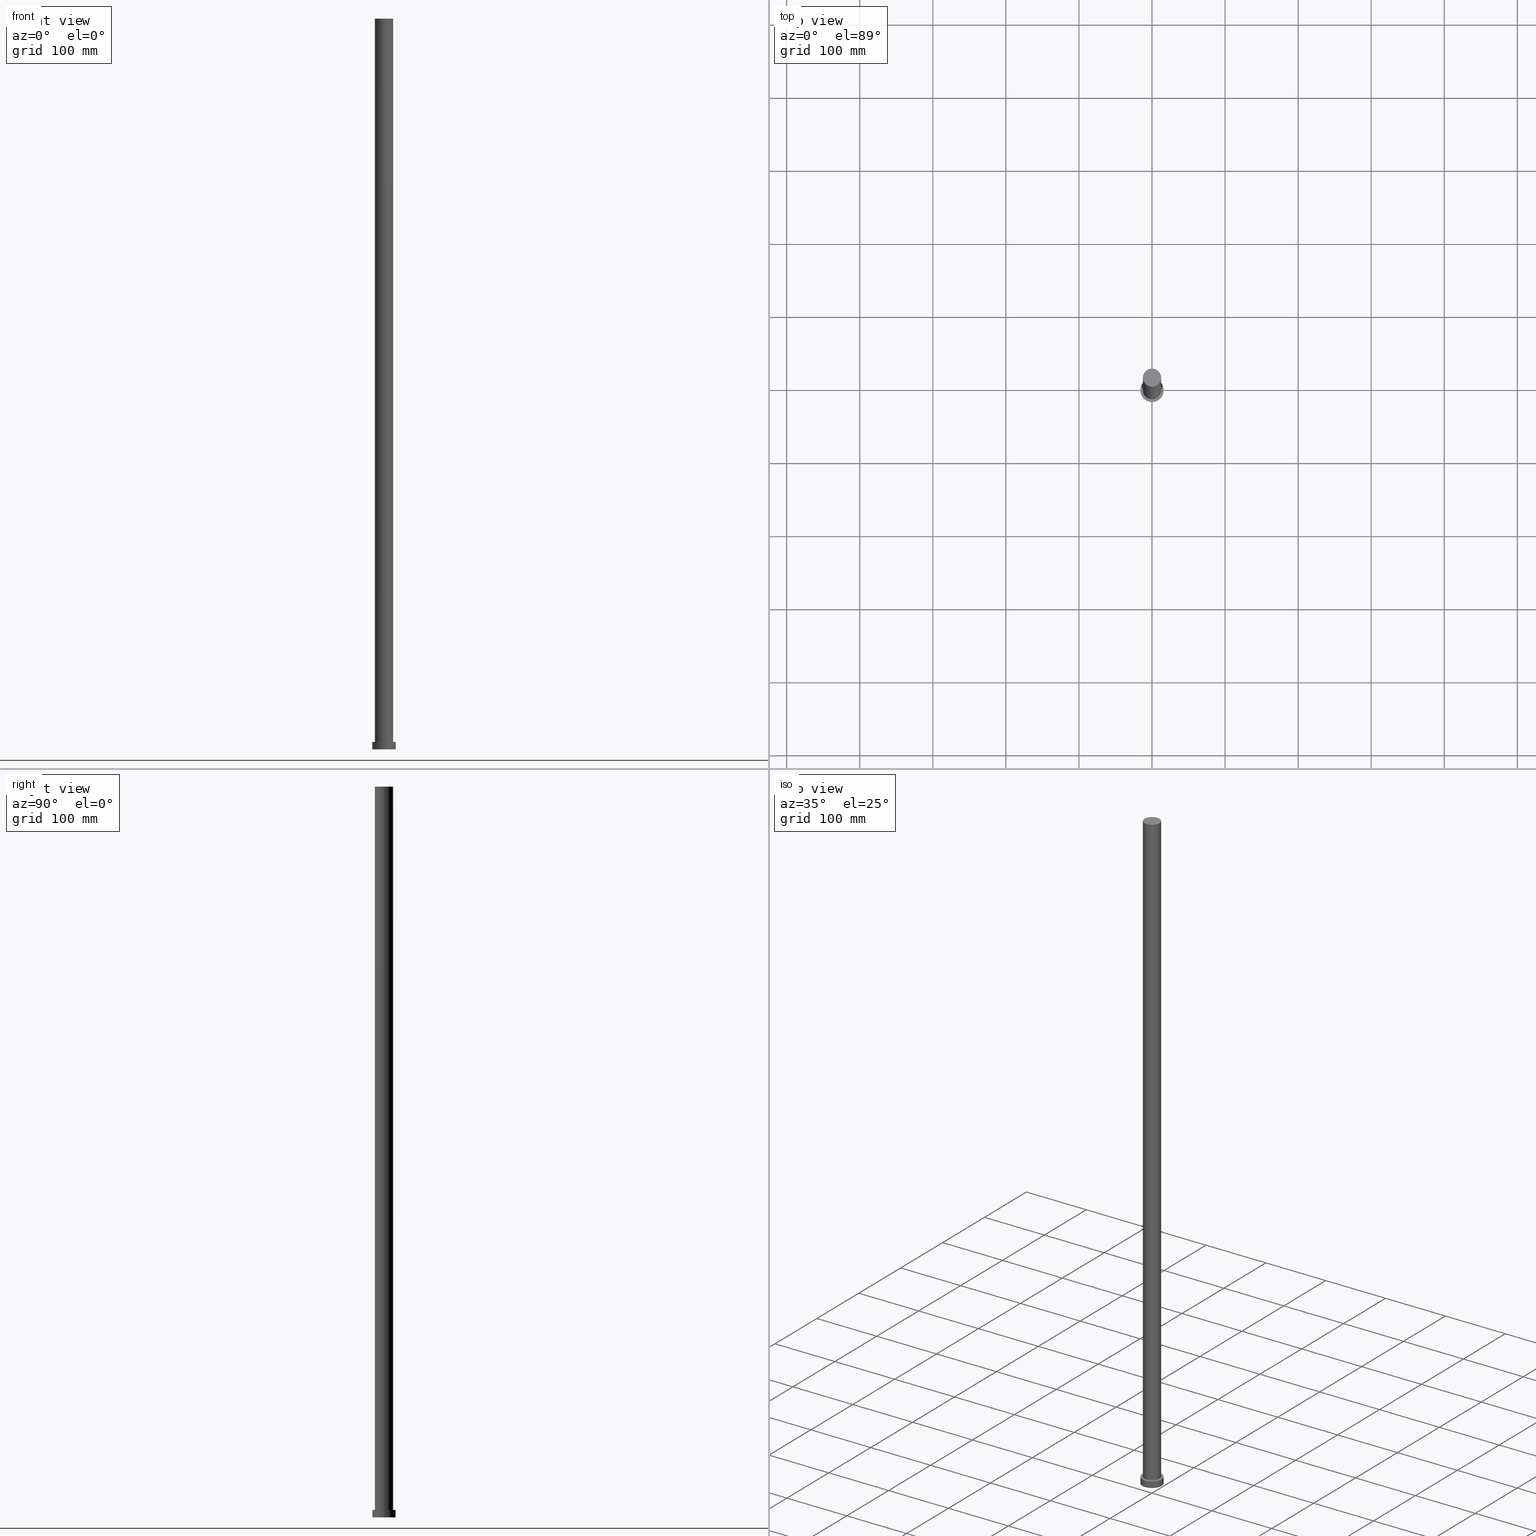
[diagram: canonical four-view strip — front | top / right | iso, engineering-drawing reading convention]
A machine part, canonical four-view strip (front | top / right | iso — engineering-drawing reading convention). The complete STEP part file that produces these views, byte-faithful:
ISO-10303-21;
HEADER;
FILE_DESCRIPTION (( 'STEP AP203' ),
    '1' );
FILE_NAME ('be8a.STEP',
    '2023-02-13T07:30:59',
    ( '' ),
    ( '' ),
    'SwSTEP 2.0',
    'SolidWorks 2019',
    '' );
FILE_SCHEMA (( 'CONFIG_CONTROL_DESIGN' ));
ENDSEC;

DATA;
#1 = EDGE_CURVE ( 'NONE', #235, #229, #188, .T. ) ;
#2 = ORIENTED_EDGE ( 'NONE', *, *, #187, .F. ) ;
#3 = CARTESIAN_POINT ( 'NONE',  ( -16.00000000000000000, 0.000000000000000000, 10.00000000000000000 ) ) ;
#4 = CIRCLE ( 'NONE', #148, 12.50000000000000000 ) ;
#5 = ORIENTED_EDGE ( 'NONE', *, *, #107, .T. ) ;
#6 = ADVANCED_FACE ( 'NONE', ( #119, #220 ), #90, .T. ) ;
#7 = LOCAL_TIME ( 8, 30, 59.00000000000000000, #27 ) ;
#8 = CARTESIAN_POINT ( 'NONE',  ( 16.00000000000000000, 1.959434878635765131E-15, 10.00000000000000000 ) ) ;
#9 = PERSON_AND_ORGANIZATION_ROLE ( 'creator' ) ;
#10 =( GEOMETRIC_REPRESENTATION_CONTEXT ( 3 ) GLOBAL_UNCERTAINTY_ASSIGNED_CONTEXT ( ( #184 ) ) GLOBAL_UNIT_ASSIGNED_CONTEXT ( ( #99, #62, #175 ) ) REPRESENTATION_CONTEXT ( 'NONE', 'WORKASPACE' ) );
#11 = APPLICATION_CONTEXT ( 'configuration controlled 3d designs of mechanical parts and assemblies' ) ;
#12 = DIRECTION ( 'NONE',  ( 0.000000000000000000, 0.000000000000000000, 1.000000000000000000 ) ) ;
#13 = FACE_OUTER_BOUND ( 'NONE', #206, .T. ) ;
#14 = APPROVAL_STATUS ( 'not_yet_approved' ) ;
#15 = AXIS2_PLACEMENT_3D ( 'NONE', #67, #106, #231 ) ;
#16 = EDGE_CURVE ( 'NONE', #130, #183, #166, .T. ) ;
#17 = CARTESIAN_POINT ( 'NONE',  ( 16.00000000000000000, 1.959434878635765131E-15, 10.00000000000000000 ) ) ;
#18 = DIRECTION ( 'NONE',  ( -0.000000000000000000, -0.000000000000000000, -1.000000000000000000 ) ) ;
#19 = ORIENTED_EDGE ( 'NONE', *, *, #102, .F. ) ;
#20 = CIRCLE ( 'NONE', #151, 12.50000000000000000 ) ;
#21 = APPROVAL_PERSON_ORGANIZATION ( #145, #110, #46 ) ;
#22 = MANIFOLD_SOLID_BREP ( 'P�idat vysunut�m3', #89 ) ;
#23 = ORIENTED_EDGE ( 'NONE', *, *, #150, .F. ) ;
#24 = DIRECTION ( 'NONE',  ( 1.000000000000000000, 0.000000000000000000, 0.000000000000000000 ) ) ;
#25 = DIRECTION ( 'NONE',  ( 0.000000000000000000, 0.000000000000000000, 1.000000000000000000 ) ) ;
#26 = DIRECTION ( 'NONE',  ( 0.000000000000000000, 0.000000000000000000, 1.000000000000000000 ) ) ;
#27 = COORDINATED_UNIVERSAL_TIME_OFFSET ( 1, 0, .AHEAD. ) ;
#28 = CARTESIAN_POINT ( 'NONE',  ( -16.00000000000000000, 0.000000000000000000, 10.00000000000000000 ) ) ;
#29 = APPROVAL_ROLE ( '' ) ;
#30 = PLANE ( 'NONE',  #111 ) ;
#31 = DIRECTION ( 'NONE',  ( -1.000000000000000000, 0.000000000000000000, 0.000000000000000000 ) ) ;
#32 = EDGE_LOOP ( 'NONE', ( #71, #214 ) ) ;
#33 = APPROVAL_PERSON_ORGANIZATION ( #174, #160, #139 ) ;
#34 = DIRECTION ( 'NONE',  ( -1.000000000000000000, 0.000000000000000000, 0.000000000000000000 ) ) ;
#35 = CARTESIAN_POINT ( 'NONE',  ( 0.000000000000000000, 0.000000000000000000, 1000.000000000000000 ) ) ;
#36 = AXIS2_PLACEMENT_3D ( 'NONE', #247, #146, #227 ) ;
#37 = DATE_TIME_ROLE ( 'creation_date' ) ;
#38 = LOCAL_TIME ( 8, 30, 59.00000000000000000, #97 ) ;
#39 = FACE_OUTER_BOUND ( 'NONE', #52, .T. ) ;
#40 = PRODUCT_DEFINITION ( 'NEZN�M�', '', #91, #53 ) ;
#41 = SECURITY_CLASSIFICATION_LEVEL ( 'unclassified' ) ;
#42 = ADVANCED_FACE ( 'NONE', ( #39 ), #138, .F. ) ;
#43 = CALENDAR_DATE ( 2023, 13, 2 ) ;
#44 = DATE_TIME_ROLE ( 'classification_date' ) ;
#45 = CIRCLE ( 'NONE', #15, 16.00000000000000000 ) ;
#46 = APPROVAL_ROLE ( '' ) ;
#47 = CARTESIAN_POINT ( 'NONE',  ( 12.50000000000000000, 1.530808498934191521E-15, 1000.000000000000000 ) ) ;
#48 = DIRECTION ( 'NONE',  ( 0.000000000000000000, 0.000000000000000000, 1.000000000000000000 ) ) ;
#49 = PRODUCT_DEFINITION_SHAPE ( 'NONE', 'NONE',  #40 ) ;
#50 = ORIENTED_EDGE ( 'NONE', *, *, #158, .F. ) ;
#51 = DIRECTION ( 'NONE',  ( 0.000000000000000000, 0.000000000000000000, 1.000000000000000000 ) ) ;
#52 = EDGE_LOOP ( 'NONE', ( #161, #162 ) ) ;
#53 = DESIGN_CONTEXT ( 'detailed design', #86, 'design' ) ;
#54 = DIRECTION ( 'NONE',  ( 1.000000000000000000, 0.000000000000000000, -0.000000000000000000 ) ) ;
#55 = CC_DESIGN_DATE_AND_TIME_ASSIGNMENT ( #94, #37, ( #40 ) ) ;
#56 = VECTOR ( 'NONE', #169, 1000.000000000000000 ) ;
#57 = PERSON_AND_ORGANIZATION_ROLE ( 'classification_officer' ) ;
#58 = CALENDAR_DATE ( 2023, 13, 2 ) ;
#59 = APPROVAL_DATE_TIME ( #217, #221 ) ;
#60 = ADVANCED_FACE ( 'NONE', ( #116 ), #92, .T. ) ;
#61 = MECHANICAL_CONTEXT ( 'NONE', #11, 'mechanical' ) ;
#62 =( NAMED_UNIT ( * ) PLANE_ANGLE_UNIT ( ) SI_UNIT ( $, .RADIAN. ) );
#63 = ADVANCED_FACE ( 'NONE', ( #219 ), #195, .T. ) ;
#64 = ORIENTED_EDGE ( 'NONE', *, *, #187, .T. ) ;
#65 = CARTESIAN_POINT ( 'NONE',  ( 0.000000000000000000, 0.000000000000000000, 10.00000000000000000 ) ) ;
#66 = ORIENTED_EDGE ( 'NONE', *, *, #230, .T. ) ;
#67 = CARTESIAN_POINT ( 'NONE',  ( 0.000000000000000000, 0.000000000000000000, 10.00000000000000000 ) ) ;
#68 = EDGE_CURVE ( 'NONE', #183, #238, #115, .T. ) ;
#69 = CYLINDRICAL_SURFACE ( 'NONE', #239, 16.00000000000000000 ) ;
#70 = ORIENTED_EDGE ( 'NONE', *, *, #136, .T. ) ;
#71 = ORIENTED_EDGE ( 'NONE', *, *, #140, .F. ) ;
#72 = VERTEX_POINT ( 'NONE', #8 ) ;
#73 = CARTESIAN_POINT ( 'NONE',  ( -12.50000000000000000, 0.000000000000000000, 1000.000000000000000 ) ) ;
#74 = DATE_AND_TIME ( #244, #153 ) ;
#75 = DIRECTION ( 'NONE',  ( 1.000000000000000000, 0.000000000000000000, 0.000000000000000000 ) ) ;
#76 = CC_DESIGN_DATE_AND_TIME_ASSIGNMENT ( #96, #44, ( #191 ) ) ;
#77 = CARTESIAN_POINT ( 'NONE',  ( 0.000000000000000000, 0.000000000000000000, 0.000000000000000000 ) ) ;
#78 = COORDINATED_UNIVERSAL_TIME_OFFSET ( 1, 0, .AHEAD. ) ;
#79 = CARTESIAN_POINT ( 'NONE',  ( -16.00000000000000000, 0.000000000000000000, 0.000000000000000000 ) ) ;
#80 = CARTESIAN_POINT ( 'NONE',  ( -12.50000000000000000, 0.000000000000000000, 10.00000000000000000 ) ) ;
#81 = CARTESIAN_POINT ( 'NONE',  ( 0.000000000000000000, 0.000000000000000000, 0.000000000000000000 ) ) ;
#82 = DIRECTION ( 'NONE',  ( 1.000000000000000000, 0.000000000000000000, 0.000000000000000000 ) ) ;
#83 = DIRECTION ( 'NONE',  ( 0.000000000000000000, 0.000000000000000000, 1.000000000000000000 ) ) ;
#84 = FACE_OUTER_BOUND ( 'NONE', #101, .T. ) ;
#85 = EDGE_LOOP ( 'NONE', ( #19, #215, #190, #234 ) ) ;
#86 = APPLICATION_CONTEXT ( 'configuration controlled 3d designs of mechanical parts and assemblies' ) ;
#87 = VERTEX_POINT ( 'NONE', #181 ) ;
#88 = ORIENTED_EDGE ( 'NONE', *, *, #1, .T. ) ;
#89 = CLOSED_SHELL ( 'NONE', ( #192, #171, #63, #6, #42, #60, #207 ) ) ;
#90 = PLANE ( 'NONE',  #163 ) ;
#91 = PRODUCT_DEFINITION_FORMATION_WITH_SPECIFIED_SOURCE ( 'LIBOVOLN�', '', #205, .NOT_KNOWN. ) ;
#92 = CYLINDRICAL_SURFACE ( 'NONE', #103, 12.50000000000000000 ) ;
#93 = DIRECTION ( 'NONE',  ( -0.000000000000000000, -0.000000000000000000, -1.000000000000000000 ) ) ;
#94 = DATE_AND_TIME ( #196, #167 ) ;
#95 = DIRECTION ( 'NONE',  ( 1.000000000000000000, 0.000000000000000000, -0.000000000000000000 ) ) ;
#96 = DATE_AND_TIME ( #58, #7 ) ;
#97 = COORDINATED_UNIVERSAL_TIME_OFFSET ( 1, 0, .AHEAD. ) ;
#98 = AXIS2_PLACEMENT_3D ( 'NONE', #100, #200, #177 ) ;
#99 =( LENGTH_UNIT ( ) NAMED_UNIT ( * ) SI_UNIT ( .MILLI., .METRE. ) );
#100 = CARTESIAN_POINT ( 'NONE',  ( 0.000000000000000000, 0.000000000000000000, 0.000000000000000000 ) ) ;
#101 = EDGE_LOOP ( 'NONE', ( #23, #134, #5, #208 ) ) ;
#102 = EDGE_CURVE ( 'NONE', #130, #185, #143, .T. ) ;
#103 = AXIS2_PLACEMENT_3D ( 'NONE', #35, #117, #173 ) ;
#104 = LINE ( 'NONE', #17, #232 ) ;
#105 = DIRECTION ( 'NONE',  ( -0.000000000000000000, -0.000000000000000000, -1.000000000000000000 ) ) ;
#106 = DIRECTION ( 'NONE',  ( 0.000000000000000000, 0.000000000000000000, 1.000000000000000000 ) ) ;
#107 = EDGE_CURVE ( 'NONE', #87, #229, #202, .T. ) ;
#108 = PRODUCT_RELATED_PRODUCT_CATEGORY ( 'detail', '', ( #205 ) ) ;
#109 = EDGE_LOOP ( 'NONE', ( #64, #165 ) ) ;
#110 = APPROVAL ( #224, 'NEUR�EN�' ) ;
#111 = AXIS2_PLACEMENT_3D ( 'NONE', #122, #26, #120 ) ;
#112 = EDGE_CURVE ( 'NONE', #183, #130, #114, .T. ) ;
#113 = PERSON ( 'NEUR�EN�', 'NEUR�EN�', 'NEUR�EN�', ('NEUR�EN�'), ('NEUR�EN�'), ('NEUR�EN�') ) ;
#114 = CIRCLE ( 'NONE', #36, 12.50000000000000000 ) ;
#115 = LINE ( 'NONE', #73, #56 ) ;
#116 = FACE_OUTER_BOUND ( 'NONE', #85, .T. ) ;
#117 = DIRECTION ( 'NONE',  ( -0.000000000000000000, -0.000000000000000000, -1.000000000000000000 ) ) ;
#118 = CIRCLE ( 'NONE', #132, 16.00000000000000000 ) ;
#119 = FACE_BOUND ( 'NONE', #32, .T. ) ;
#120 = DIRECTION ( 'NONE',  ( 1.000000000000000000, 0.000000000000000000, -0.000000000000000000 ) ) ;
#121 = COORDINATED_UNIVERSAL_TIME_OFFSET ( 1, 0, .AHEAD. ) ;
#122 = CARTESIAN_POINT ( 'NONE',  ( 0.000000000000000000, 0.000000000000000000, 1000.000000000000000 ) ) ;
#123 = CARTESIAN_POINT ( 'NONE',  ( 12.50000000000000000, 1.530808498934191521E-15, 1000.000000000000000 ) ) ;
#124 = EDGE_LOOP ( 'NONE', ( #212, #164, #66, #251 ) ) ;
#125 = PERSON_AND_ORGANIZATION_ROLE ( 'design_owner' ) ;
#126 = ORGANIZATION ( 'NEUR�EN�', 'NEUR�EN�', '' ) ;
#127 = AXIS2_PLACEMENT_3D ( 'NONE', #210, #245, #31 ) ;
#128 = ORIENTED_EDGE ( 'NONE', *, *, #112, .T. ) ;
#129 = CYLINDRICAL_SURFACE ( 'NONE', #127, 12.50000000000000000 ) ;
#130 = VERTEX_POINT ( 'NONE', #47 ) ;
#131 = FACE_OUTER_BOUND ( 'NONE', #124, .T. ) ;
#132 = AXIS2_PLACEMENT_3D ( 'NONE', #65, #48, #211 ) ;
#133 = CC_DESIGN_PERSON_AND_ORGANIZATION_ASSIGNMENT ( #142, #125, ( #205 ) ) ;
#134 = ORIENTED_EDGE ( 'NONE', *, *, #158, .T. ) ;
#135 = CC_DESIGN_APPROVAL ( #221, ( #91 ) ) ;
#136 = EDGE_CURVE ( 'NONE', #229, #87, #176, .T. ) ;
#137 = DIRECTION ( 'NONE',  ( 0.000000000000000000, 0.000000000000000000, 1.000000000000000000 ) ) ;
#138 = PLANE ( 'NONE',  #249 ) ;
#139 = APPROVAL_ROLE ( '' ) ;
#140 = EDGE_CURVE ( 'NONE', #238, #185, #20, .T. ) ;
#141 = CARTESIAN_POINT ( 'NONE',  ( 0.000000000000000000, 0.000000000000000000, 10.00000000000000000 ) ) ;
#142 = PERSON_AND_ORGANIZATION ( #113, #126 ) ;
#143 = LINE ( 'NONE', #123, #223 ) ;
#144 = APPROVAL_PERSON_ORGANIZATION ( #243, #221, #29 ) ;
#145 = PERSON_AND_ORGANIZATION ( #113, #126 ) ;
#146 = DIRECTION ( 'NONE',  ( 0.000000000000000000, 0.000000000000000000, 1.000000000000000000 ) ) ;
#147 = CARTESIAN_POINT ( 'NONE',  ( 0.000000000000000000, 0.000000000000000000, 10.00000000000000000 ) ) ;
#148 = AXIS2_PLACEMENT_3D ( 'NONE', #228, #159, #226 ) ;
#149 = CC_DESIGN_SECURITY_CLASSIFICATION ( #191, ( #91 ) ) ;
#150 = EDGE_CURVE ( 'NONE', #72, #235, #118, .T. ) ;
#151 = AXIS2_PLACEMENT_3D ( 'NONE', #250, #51, #253 ) ;
#152 = APPROVAL_STATUS ( 'not_yet_approved' ) ;
#153 = LOCAL_TIME ( 8, 30, 59.00000000000000000, #78 ) ;
#154 = DATE_AND_TIME ( #43, #38 ) ;
#155 = APPLICATION_PROTOCOL_DEFINITION ( 'international standard', 'config_control_design', 1994, #11 ) ;
#156 = AXIS2_PLACEMENT_3D ( 'NONE', #197, #12, #24 ) ;
#157 = APPLICATION_PROTOCOL_DEFINITION ( 'international standard', 'config_control_design', 1994, #86 ) ;
#158 = EDGE_CURVE ( 'NONE', #72, #87, #104, .T. ) ;
#159 = DIRECTION ( 'NONE',  ( 0.000000000000000000, 0.000000000000000000, 1.000000000000000000 ) ) ;
#160 = APPROVAL ( #14, 'NEUR�EN�' ) ;
#161 = ORIENTED_EDGE ( 'NONE', *, *, #136, .F. ) ;
#162 = ORIENTED_EDGE ( 'NONE', *, *, #107, .F. ) ;
#163 = AXIS2_PLACEMENT_3D ( 'NONE', #141, #137, #54 ) ;
#164 = ORIENTED_EDGE ( 'NONE', *, *, #102, .T. ) ;
#165 = ORIENTED_EDGE ( 'NONE', *, *, #150, .T. ) ;
#166 = CIRCLE ( 'NONE', #156, 12.50000000000000000 ) ;
#167 = LOCAL_TIME ( 8, 30, 59.00000000000000000, #241 ) ;
#168 = PERSON_AND_ORGANIZATION ( #113, #126 ) ;
#169 = DIRECTION ( 'NONE',  ( -0.000000000000000000, -0.000000000000000000, -1.000000000000000000 ) ) ;
#170 = CALENDAR_DATE ( 2023, 13, 2 ) ;
#171 = ADVANCED_FACE ( 'NONE', ( #84 ), #69, .T. ) ;
#172 = DIRECTION ( 'NONE',  ( -0.000000000000000000, -0.000000000000000000, -1.000000000000000000 ) ) ;
#173 = DIRECTION ( 'NONE',  ( -1.000000000000000000, 0.000000000000000000, 0.000000000000000000 ) ) ;
#174 = PERSON_AND_ORGANIZATION ( #113, #126 ) ;
#175 =( NAMED_UNIT ( * ) SI_UNIT ( $, .STERADIAN. ) SOLID_ANGLE_UNIT ( ) );
#176 = CIRCLE ( 'NONE', #254, 16.00000000000000000 ) ;
#177 = DIRECTION ( 'NONE',  ( 1.000000000000000000, 0.000000000000000000, 0.000000000000000000 ) ) ;
#178 = CC_DESIGN_PERSON_AND_ORGANIZATION_ASSIGNMENT ( #218, #240, ( #91 ) ) ;
#179 = DIRECTION ( 'NONE',  ( -0.000000000000000000, -0.000000000000000000, -1.000000000000000000 ) ) ;
#180 = AXIS2_PLACEMENT_3D ( 'NONE', #81, #248, #75 ) ;
#181 = CARTESIAN_POINT ( 'NONE',  ( 16.00000000000000000, 1.959434878635765131E-15, 0.000000000000000000 ) ) ;
#182 = CC_DESIGN_APPROVAL ( #110, ( #40 ) ) ;
#183 = VERTEX_POINT ( 'NONE', #236 ) ;
#184 = UNCERTAINTY_MEASURE_WITH_UNIT (LENGTH_MEASURE( 1.000000000000000082E-05 ), #99, 'distance_accuracy_value', 'NONE');
#185 = VERTEX_POINT ( 'NONE', #252 ) ;
#186 = AXIS2_PLACEMENT_3D ( 'NONE', #216, #172, #34 ) ;
#187 = EDGE_CURVE ( 'NONE', #235, #72, #45, .T. ) ;
#188 = LINE ( 'NONE', #3, #233 ) ;
#189 = CC_DESIGN_PERSON_AND_ORGANIZATION_ASSIGNMENT ( #168, #9, ( #91 ) ) ;
#190 = ORIENTED_EDGE ( 'NONE', *, *, #68, .T. ) ;
#191 = SECURITY_CLASSIFICATION ( '', '', #41 ) ;
#192 = ADVANCED_FACE ( 'NONE', ( #131 ), #129, .T. ) ;
#193 = LOCAL_TIME ( 8, 30, 59.00000000000000000, #121 ) ;
#194 = APPROVAL_DATE_TIME ( #74, #160 ) ;
#195 = CYLINDRICAL_SURFACE ( 'NONE', #186, 16.00000000000000000 ) ;
#196 = CALENDAR_DATE ( 2023, 13, 2 ) ;
#197 = CARTESIAN_POINT ( 'NONE',  ( 0.000000000000000000, 0.000000000000000000, 1000.000000000000000 ) ) ;
#198 = PERSON_AND_ORGANIZATION_ROLE ( 'creator' ) ;
#199 = PERSON_AND_ORGANIZATION ( #113, #126 ) ;
#200 = DIRECTION ( 'NONE',  ( 0.000000000000000000, 0.000000000000000000, 1.000000000000000000 ) ) ;
#201 = CC_DESIGN_PERSON_AND_ORGANIZATION_ASSIGNMENT ( #222, #198, ( #40 ) ) ;
#202 = CIRCLE ( 'NONE', #98, 16.00000000000000000 ) ;
#203 = CARTESIAN_POINT ( 'NONE',  ( 0.000000000000000000, 0.000000000000000000, 0.000000000000000000 ) ) ;
#204 = EDGE_LOOP ( 'NONE', ( #50, #2, #88, #70 ) ) ;
#205 = PRODUCT ( 'be8a', 'be8a', '', ( #61 ) ) ;
#206 = EDGE_LOOP ( 'NONE', ( #128, #237 ) ) ;
#207 = ADVANCED_FACE ( 'NONE', ( #13 ), #30, .T. ) ;
#208 = ORIENTED_EDGE ( 'NONE', *, *, #1, .F. ) ;
#209 = ADVANCED_BREP_SHAPE_REPRESENTATION ( 'be8a', ( #22, #180 ), #10 ) ;
#210 = CARTESIAN_POINT ( 'NONE',  ( 0.000000000000000000, 0.000000000000000000, 1000.000000000000000 ) ) ;
#211 = DIRECTION ( 'NONE',  ( 1.000000000000000000, 0.000000000000000000, 0.000000000000000000 ) ) ;
#212 = ORIENTED_EDGE ( 'NONE', *, *, #16, .F. ) ;
#213 = CC_DESIGN_PERSON_AND_ORGANIZATION_ASSIGNMENT ( #199, #57, ( #191 ) ) ;
#214 = ORIENTED_EDGE ( 'NONE', *, *, #230, .F. ) ;
#215 = ORIENTED_EDGE ( 'NONE', *, *, #112, .F. ) ;
#216 = CARTESIAN_POINT ( 'NONE',  ( 0.000000000000000000, 0.000000000000000000, 10.00000000000000000 ) ) ;
#217 = DATE_AND_TIME ( #170, #193 ) ;
#218 = PERSON_AND_ORGANIZATION ( #113, #126 ) ;
#219 = FACE_OUTER_BOUND ( 'NONE', #204, .T. ) ;
#220 = FACE_OUTER_BOUND ( 'NONE', #109, .T. ) ;
#221 = APPROVAL ( #152, 'NEUR�EN�' ) ;
#222 = PERSON_AND_ORGANIZATION ( #113, #126 ) ;
#223 = VECTOR ( 'NONE', #179, 1000.000000000000000 ) ;
#224 = APPROVAL_STATUS ( 'not_yet_approved' ) ;
#225 = SHAPE_DEFINITION_REPRESENTATION ( #49, #209 ) ;
#226 = DIRECTION ( 'NONE',  ( 1.000000000000000000, 0.000000000000000000, 0.000000000000000000 ) ) ;
#227 = DIRECTION ( 'NONE',  ( 1.000000000000000000, 0.000000000000000000, 0.000000000000000000 ) ) ;
#228 = CARTESIAN_POINT ( 'NONE',  ( 0.000000000000000000, 0.000000000000000000, 10.00000000000000000 ) ) ;
#229 = VERTEX_POINT ( 'NONE', #79 ) ;
#230 = EDGE_CURVE ( 'NONE', #185, #238, #4, .T. ) ;
#231 = DIRECTION ( 'NONE',  ( 1.000000000000000000, 0.000000000000000000, 0.000000000000000000 ) ) ;
#232 = VECTOR ( 'NONE', #105, 1000.000000000000000 ) ;
#233 = VECTOR ( 'NONE', #93, 1000.000000000000000 ) ;
#234 = ORIENTED_EDGE ( 'NONE', *, *, #140, .T. ) ;
#235 = VERTEX_POINT ( 'NONE', #28 ) ;
#236 = CARTESIAN_POINT ( 'NONE',  ( -12.50000000000000000, 0.000000000000000000, 1000.000000000000000 ) ) ;
#237 = ORIENTED_EDGE ( 'NONE', *, *, #16, .T. ) ;
#238 = VERTEX_POINT ( 'NONE', #80 ) ;
#239 = AXIS2_PLACEMENT_3D ( 'NONE', #147, #18, #255 ) ;
#240 = PERSON_AND_ORGANIZATION_ROLE ( 'design_supplier' ) ;
#241 = COORDINATED_UNIVERSAL_TIME_OFFSET ( 1, 0, .AHEAD. ) ;
#242 = APPROVAL_DATE_TIME ( #154, #110 ) ;
#243 = PERSON_AND_ORGANIZATION ( #113, #126 ) ;
#244 = CALENDAR_DATE ( 2023, 13, 2 ) ;
#245 = DIRECTION ( 'NONE',  ( -0.000000000000000000, -0.000000000000000000, -1.000000000000000000 ) ) ;
#246 = CC_DESIGN_APPROVAL ( #160, ( #191 ) ) ;
#247 = CARTESIAN_POINT ( 'NONE',  ( 0.000000000000000000, 0.000000000000000000, 1000.000000000000000 ) ) ;
#248 = DIRECTION ( 'NONE',  ( 0.000000000000000000, 0.000000000000000000, 1.000000000000000000 ) ) ;
#249 = AXIS2_PLACEMENT_3D ( 'NONE', #77, #25, #95 ) ;
#250 = CARTESIAN_POINT ( 'NONE',  ( 0.000000000000000000, 0.000000000000000000, 10.00000000000000000 ) ) ;
#251 = ORIENTED_EDGE ( 'NONE', *, *, #68, .F. ) ;
#252 = CARTESIAN_POINT ( 'NONE',  ( 12.50000000000000000, 1.530808498934191521E-15, 10.00000000000000000 ) ) ;
#253 = DIRECTION ( 'NONE',  ( 1.000000000000000000, 0.000000000000000000, 0.000000000000000000 ) ) ;
#254 = AXIS2_PLACEMENT_3D ( 'NONE', #203, #83, #82 ) ;
#255 = DIRECTION ( 'NONE',  ( -1.000000000000000000, 0.000000000000000000, 0.000000000000000000 ) ) ;
ENDSEC;
END-ISO-10303-21;
